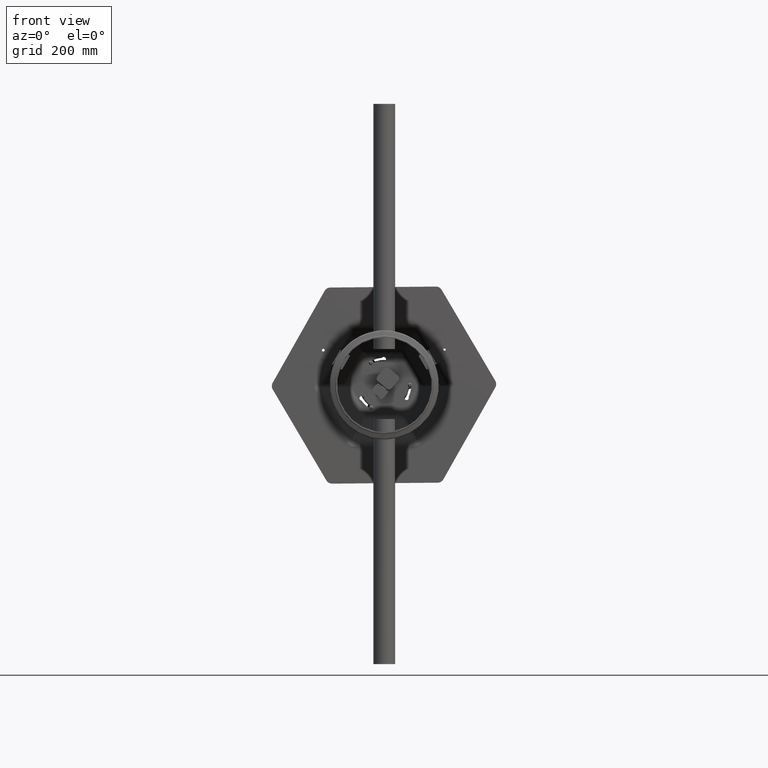
[diagram: clean part render]
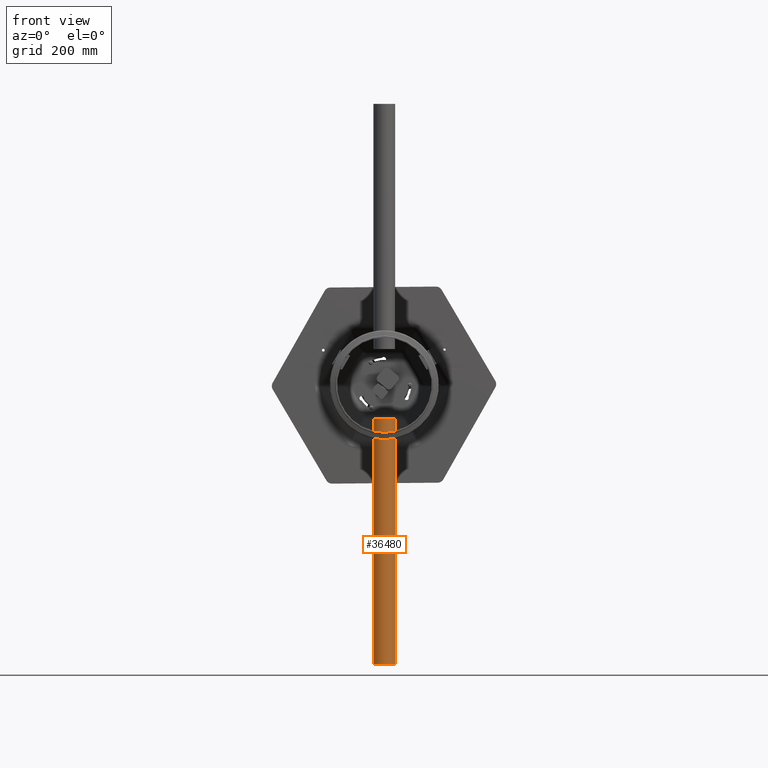
[diagram: same view with one face highlighted and labeled with its STEP entity id]
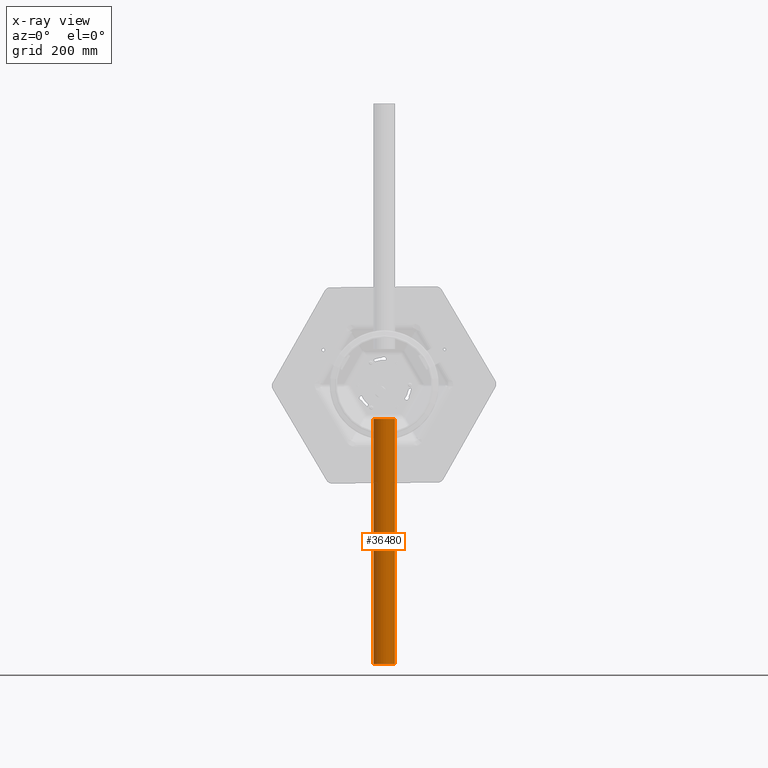
[diagram: x-ray of the same camera — body ghosted, the highlighted face saturated]
A machine part, front view. The second image highlights one B-rep face of the part: STEP entity #36480.
The next image is the same camera in x-ray: the body ghosted, the highlighted face saturated — about 0% of this face is hidden behind the body in this view.
In plain terms, the highlighted cylindrical surface (edge-blend (fillet) strip) has radius 20 mm, axis along (0, 0, 1).
Its self-contained STEP definition (entity closure, byte-faithful):
#429 = AXIS2_PLACEMENT_3D ( 'NONE', #35858, #14318, #39485 ) ;
#3457 = EDGE_CURVE ( 'NONE', #7302, #6101, #34879, .T. ) ;
#6101 = VERTEX_POINT ( 'NONE', #15031 ) ;
#6591 = VECTOR ( 'NONE', #43735, 1000.000000000000000 ) ;
#6665 = AXIS2_PLACEMENT_3D ( 'NONE', #8318, #33368, #11933 ) ;
#7302 = VERTEX_POINT ( 'NONE', #38027 ) ;
#8318 = CARTESIAN_POINT ( 'NONE',  ( 0.0000000000000000000, 0.0000000000000000000, 449.9999999999996021 ) ) ;
#11933 = DIRECTION ( 'NONE',  ( 1.000000000000000000, -6.819134836819593232E-34, 0.0000000000000000000 ) ) ;
#11946 = CARTESIAN_POINT ( 'NONE',  ( 0.0000000000000000000, 0.0000000000000000000, 0.0000000000000000000 ) ) ;
#12948 = AXIS2_PLACEMENT_3D ( 'NONE', #11946, #36970, #15534 ) ;
#13242 = EDGE_CURVE ( 'NONE', #6101, #16270, #19776, .T. ) ;
#14318 = DIRECTION ( 'NONE',  ( -4.314083075427410500E-32, 6.162975822039156919E-32, -1.000000000000000000 ) ) ;
#15031 = CARTESIAN_POINT ( 'NONE',  ( -20.00000000000000000, 1.388033386926172388E-29, 8.628166150854821877E-31 ) ) ;
#15534 = DIRECTION ( 'NONE',  ( 1.000000000000000000, -6.819134836819593232E-34, 4.930380657631319405E-32 ) ) ;
#15853 = VECTOR ( 'NONE', #23039, 1000.000000000000000 ) ;
#16270 = VERTEX_POINT ( 'NONE', #42052 ) ;
#19776 = CIRCLE ( 'NONE', #12948, 20.00000000000001776 ) ;
#23039 = DIRECTION ( 'NONE',  ( -4.314083075427410500E-32, 6.162975822039156919E-32, -1.000000000000000000 ) ) ;
#24513 = LINE ( 'NONE', #40141, #6591 ) ;
#24941 = VERTEX_POINT ( 'NONE', #38190 ) ;
#25704 = EDGE_CURVE ( 'NONE', #24941, #16270, #24513, .T. ) ;
#30203 = CARTESIAN_POINT ( 'NONE',  ( -20.00000000000001776, 1.363826967363919878E-32, 449.9999999999996021 ) ) ;
#32039 = ORIENTED_EDGE ( 'NONE', *, *, #13242, .T. ) ;
#33368 = DIRECTION ( 'NONE',  ( 4.314083075427410500E-32, -6.162975822039156919E-32, 1.000000000000000000 ) ) ;
#33409 = FACE_OUTER_BOUND ( 'NONE', #44295, .T. ) ;
#34879 = LINE ( 'NONE', #30203, #15853 ) ;
#35858 = CARTESIAN_POINT ( 'NONE',  ( 0.0000000000000000000, 0.0000000000000000000, 449.9999999999996021 ) ) ;
#36480 = ADVANCED_FACE ( 'NONE', ( #33409 ), #41818, .T. ) ;
#36533 = ORIENTED_EDGE ( 'NONE', *, *, #44576, .F. ) ;
#36970 = DIRECTION ( 'NONE',  ( 4.314083075427410500E-32, -6.162975822039156919E-32, 1.000000000000000000 ) ) ;
#38027 = CARTESIAN_POINT ( 'NONE',  ( -20.00000000000000000, 1.388033386926172388E-29, 449.9999999999996021 ) ) ;
#38190 = CARTESIAN_POINT ( 'NONE',  ( 20.00000000000000000, 2.449293598294719135E-15, 449.9999999999996021 ) ) ;
#39307 = CIRCLE ( 'NONE', #6665, 20.00000000000001776 ) ;
#39485 = DIRECTION ( 'NONE',  ( -1.000000000000000000, 6.819134836819593232E-34, 0.0000000000000000000 ) ) ;
#39767 = ORIENTED_EDGE ( 'NONE', *, *, #3457, .T. ) ;
#40141 = CARTESIAN_POINT ( 'NONE',  ( 20.00000000000001776, 2.449293598294707696E-15, 449.9999999999996021 ) ) ;
#40177 = ORIENTED_EDGE ( 'NONE', *, *, #25704, .F. ) ;
#41818 = CYLINDRICAL_SURFACE ( 'NONE', #429, 20.00000000000001776 ) ;
#42052 = CARTESIAN_POINT ( 'NONE',  ( 20.00000000000000000, 2.449293598294719135E-15, -8.628166150854806112E-31 ) ) ;
#43735 = DIRECTION ( 'NONE',  ( -4.314083075427410500E-32, 6.162975822039156919E-32, -1.000000000000000000 ) ) ;
#44295 = EDGE_LOOP ( 'NONE', ( #40177, #36533, #39767, #32039 ) ) ;
#44576 = EDGE_CURVE ( 'NONE', #7302, #24941, #39307, .T. ) ;